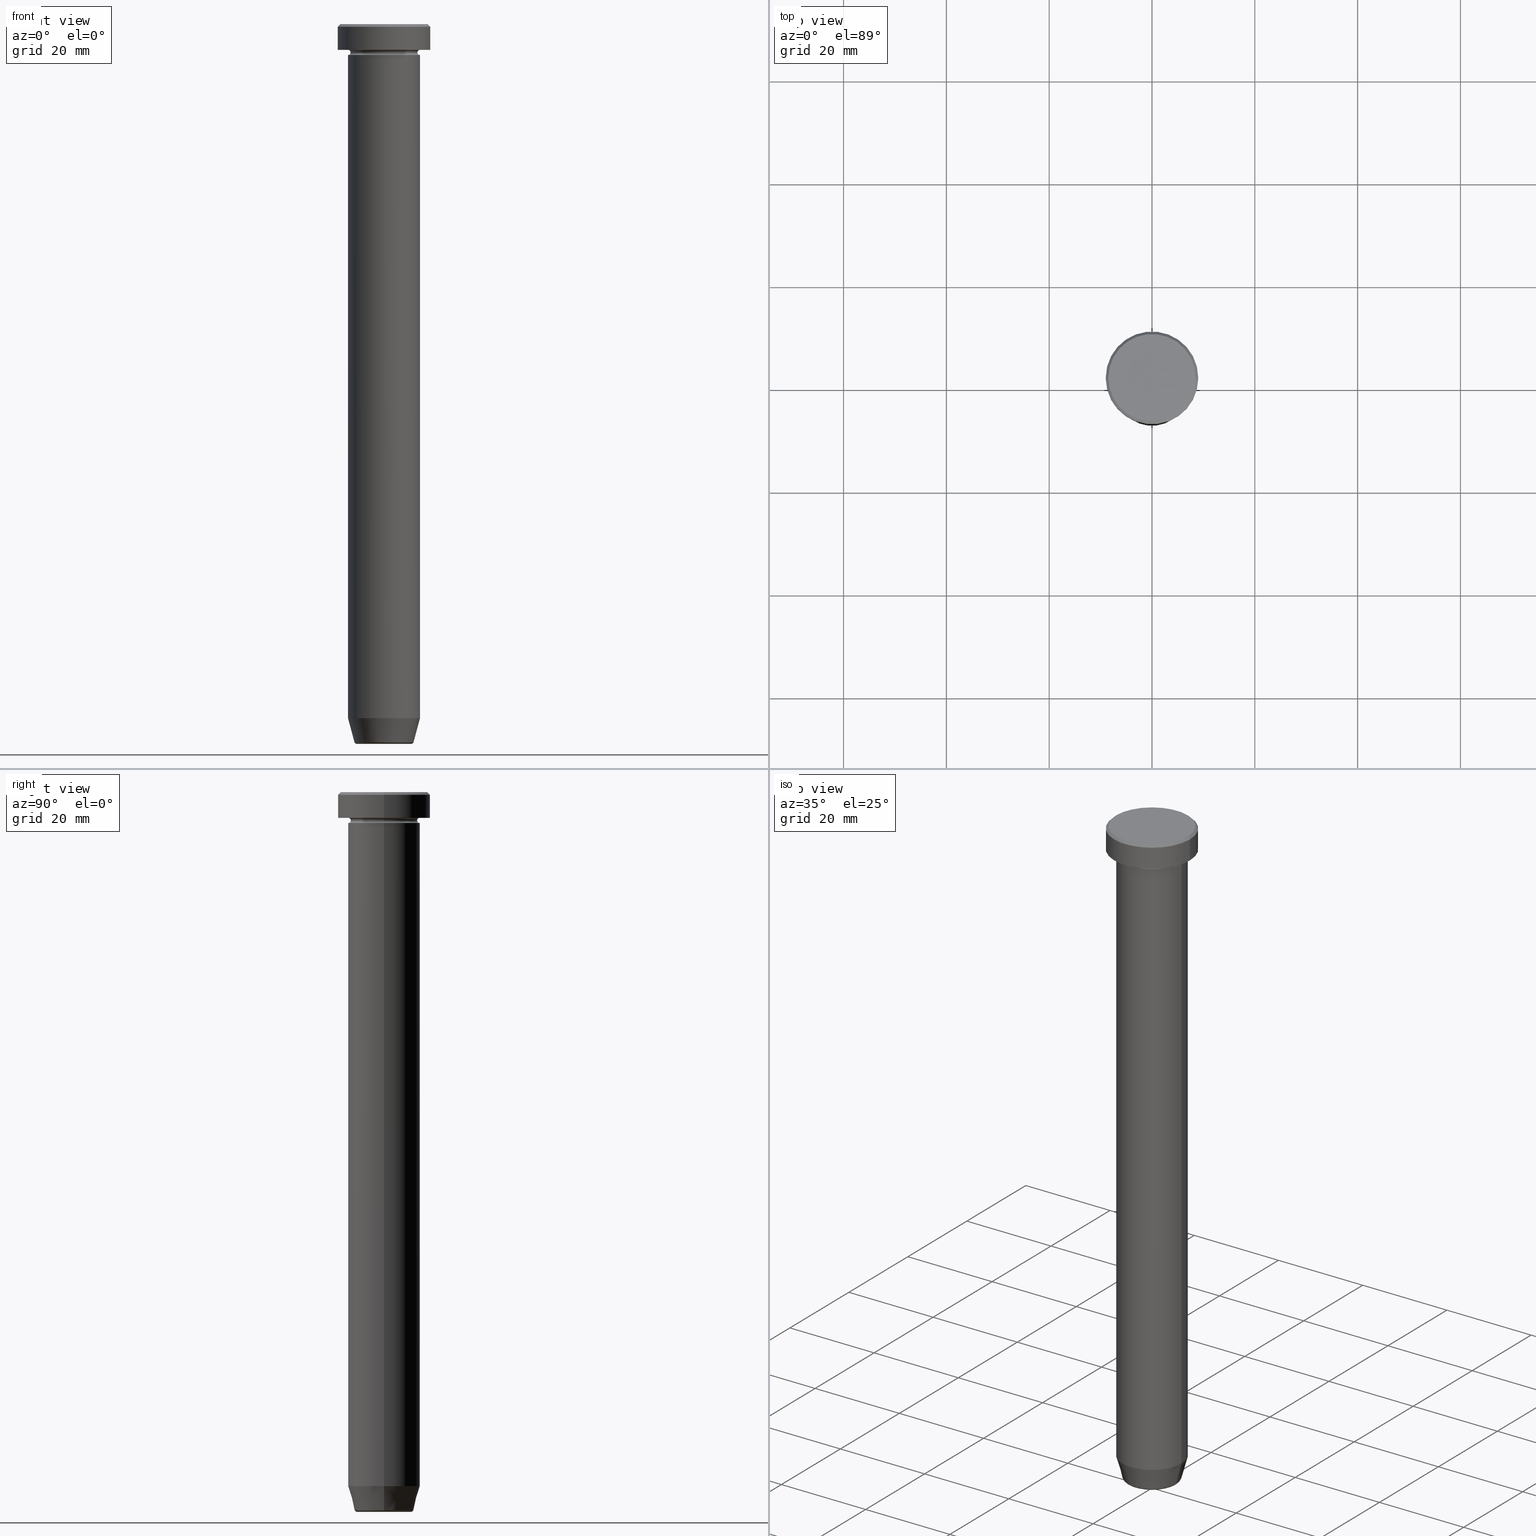
[diagram: canonical four-view strip — front | top / right | iso, engineering-drawing reading convention]
A machine part, canonical four-view strip (front | top / right | iso — engineering-drawing reading convention). The complete STEP part file that produces these views, byte-faithful:
ISO-10303-21;
HEADER;
FILE_DESCRIPTION (( 'STEP AP203' ),
    '1' );
FILE_NAME ('d78c.STEP',
    '2024-01-02T23:12:26',
    ( '' ),
    ( '' ),
    'SwSTEP 2.0',
    'SolidWorks 2019',
    '' );
FILE_SCHEMA (( 'CONFIG_CONTROL_DESIGN' ));
ENDSEC;

DATA;
#1 = ORIENTED_EDGE ( 'NONE', *, *, #469, .T. ) ;
#2 = DIRECTION ( 'NONE',  ( -0.000000000000000000, -0.000000000000000000, 1.000000000000000000 ) ) ;
#3 = APPROVAL_STATUS ( 'not_yet_approved' ) ;
#4 = VERTEX_POINT ( 'NONE', #567 ) ;
#5 = ORIENTED_EDGE ( 'NONE', *, *, #226, .T. ) ;
#6 = CYLINDRICAL_SURFACE ( 'NONE', #482, 9.000000000000000000 ) ;
#7 = AXIS2_PLACEMENT_3D ( 'NONE', #14, #430, #199 ) ;
#8 = AXIS2_PLACEMENT_3D ( 'NONE', #577, #136, #318 ) ;
#9 = EDGE_CURVE ( 'NONE', #383, #455, #119, .T. ) ;
#10 = PERSON_AND_ORGANIZATION ( #48, #489 ) ;
#11 = CARTESIAN_POINT ( 'NONE',  ( 9.000000000000000000, 0.000000000000000000, -5.000000000000000000 ) ) ;
#12 = DIRECTION ( 'NONE',  ( 1.000000000000000000, 0.000000000000000000, 0.000000000000000000 ) ) ;
#13 = ORIENTED_EDGE ( 'NONE', *, *, #586, .F. ) ;
#14 = CARTESIAN_POINT ( 'NONE',  ( 0.000000000000000000, 0.000000000000000000, 0.000000000000000000 ) ) ;
#15 = AXIS2_PLACEMENT_3D ( 'NONE', #404, #309, #76 ) ;
#16 = DIRECTION ( 'NONE',  ( 1.000000000000000000, 0.000000000000000000, 0.000000000000000000 ) ) ;
#17 = LOCAL_TIME ( 0, 12, 26.00000000000000000, #440 ) ;
#18 = ADVANCED_FACE ( 'NONE', ( #350 ), #356, .F. ) ;
#19 = ORIENTED_EDGE ( 'NONE', *, *, #283, .T. ) ;
#20 = DIRECTION ( 'NONE',  ( -0.000000000000000000, -0.000000000000000000, 1.000000000000000000 ) ) ;
#21 = DIRECTION ( 'NONE',  ( -0.000000000000000000, -0.000000000000000000, 1.000000000000000000 ) ) ;
#22 = VECTOR ( 'NONE', #450, 1000.000000000000000 ) ;
#23 = EDGE_CURVE ( 'NONE', #330, #514, #437, .T. ) ;
#24 = ORIENTED_EDGE ( 'NONE', *, *, #586, .T. ) ;
#25 = AXIS2_PLACEMENT_3D ( 'NONE', #422, #377, #460 ) ;
#26 = CIRCLE ( 'NONE', #408, 7.000000000000000888 ) ;
#27 = ORIENTED_EDGE ( 'NONE', *, *, #165, .T. ) ;
#28 = DIRECTION ( 'NONE',  ( -0.000000000000000000, -0.000000000000000000, 1.000000000000000000 ) ) ;
#29 = LOCAL_TIME ( 0, 12, 26.00000000000000000, #57 ) ;
#30 = DIRECTION ( 'NONE',  ( 1.000000000000000000, 0.000000000000000000, 0.000000000000000000 ) ) ;
#31 = DIRECTION ( 'NONE',  ( 0.000000000000000000, 0.000000000000000000, 1.000000000000000000 ) ) ;
#32 = CIRCLE ( 'NONE', #174, 7.000000000000000000 ) ;
#33 = ADVANCED_FACE ( 'NONE', ( #286 ), #236, .T. ) ;
#34 = CARTESIAN_POINT ( 'NONE',  ( 6.500000000000000888, 0.000000000000000000, -5.500000000000000000 ) ) ;
#35 = CARTESIAN_POINT ( 'NONE',  ( 7.000000000000000000, 0.000000000000000000, -27.00000000000000000 ) ) ;
#36 = ORIENTED_EDGE ( 'NONE', *, *, #131, .T. ) ;
#37 = CARTESIAN_POINT ( 'NONE',  ( 8.500000000000003553, 1.040949779275250731E-15, 0.000000000000000000 ) ) ;
#38 = ORIENTED_EDGE ( 'NONE', *, *, #370, .T. ) ;
#39 = APPROVAL_PERSON_ORGANIZATION ( #212, #413, #402 ) ;
#40 = EDGE_CURVE ( 'NONE', #351, #410, #380, .T. ) ;
#41 = PERSON_AND_ORGANIZATION_ROLE ( 'creator' ) ;
#42 = CIRCLE ( 'NONE', #8, 7.000000000000000000 ) ;
#43 = VERTEX_POINT ( 'NONE', #201 ) ;
#44 = PRODUCT_DEFINITION ( 'NEZN�M�', '', #171, #476 ) ;
#45 = ORIENTED_EDGE ( 'NONE', *, *, #195, .F. ) ;
#46 = CARTESIAN_POINT ( 'NONE',  ( 0.000000000000000000, 0.000000000000000000, -5.500000000000000000 ) ) ;
#47 = TOROIDAL_SURFACE ( 'NONE', #151, 7.000000000000000888, 0.5000000000000000000 ) ;
#48 = PERSON ( 'NEUR�EN�', 'NEUR�EN�', 'NEUR�EN�', ('NEUR�EN�'), ('NEUR�EN�'), ('NEUR�EN�') ) ;
#49 = VERTEX_POINT ( 'NONE', #203 ) ;
#50 = APPLICATION_CONTEXT ( 'configuration controlled 3d designs of mechanical parts and assemblies' ) ;
#51 = ADVANCED_FACE ( 'NONE', ( #553 ), #376, .F. ) ;
#52 = CARTESIAN_POINT ( 'NONE',  ( 0.000000000000000000, 0.000000000000000000, -27.00000000000000000 ) ) ;
#53 = DIRECTION ( 'NONE',  ( -1.000000000000000000, 0.000000000000000000, 0.000000000000000000 ) ) ;
#54 = AXIS2_PLACEMENT_3D ( 'NONE', #132, #487, #312 ) ;
#55 = DIRECTION ( 'NONE',  ( -0.000000000000000000, -0.000000000000000000, 1.000000000000000000 ) ) ;
#56 = DIRECTION ( 'NONE',  ( -1.000000000000000000, -1.224646799147351482E-16, 0.000000000000000000 ) ) ;
#57 = COORDINATED_UNIVERSAL_TIME_OFFSET ( 1, 0, .AHEAD. ) ;
#58 = ORIENTED_EDGE ( 'NONE', *, *, #81, .F. ) ;
#59 = FACE_OUTER_BOUND ( 'NONE', #295, .T. ) ;
#60 = CARTESIAN_POINT ( 'NONE',  ( -9.000000000000000000, 1.102182119232617714E-15, 0.000000000000000000 ) ) ;
#61 = DIRECTION ( 'NONE',  ( -0.000000000000000000, -1.000000000000000000, -0.000000000000000000 ) ) ;
#62 = MANIFOLD_SOLID_BREP ( 'Zaoblit4', #574 ) ;
#63 = PLANE ( 'NONE',  #7 ) ;
#64 = ORIENTED_EDGE ( 'NONE', *, *, #326, .F. ) ;
#65 = ORIENTED_EDGE ( 'NONE', *, *, #9, .T. ) ;
#66 = CARTESIAN_POINT ( 'NONE',  ( -7.000000000000000888, 8.572527594031474176E-16, -5.500000000000000000 ) ) ;
#67 = ADVANCED_FACE ( 'NONE', ( #333 ), #470, .T. ) ;
#68 = DIRECTION ( 'NONE',  ( 1.000000000000000000, 0.000000000000000000, 0.000000000000000000 ) ) ;
#69 = AXIS2_PLACEMENT_3D ( 'NONE', #307, #420, #517 ) ;
#70 = CALENDAR_DATE ( 2024, 3, 1 ) ;
#71 = CC_DESIGN_PERSON_AND_ORGANIZATION_ASSIGNMENT ( #187, #536, ( #171 ) ) ;
#72 = DIRECTION ( 'NONE',  ( 0.000000000000000000, -1.000000000000000000, 0.000000000000000000 ) ) ;
#73 = DIRECTION ( 'NONE',  ( -1.224646799147353207E-16, 1.000000000000000000, 0.000000000000000000 ) ) ;
#74 = ADVANCED_FACE ( 'NONE', ( #462 ), #427, .T. ) ;
#75 = VECTOR ( 'NONE', #184, 1000.000000000000114 ) ;
#76 = DIRECTION ( 'NONE',  ( 1.000000000000000000, 0.000000000000000000, 0.000000000000000000 ) ) ;
#77 = VERTEX_POINT ( 'NONE', #559 ) ;
#78 = AXIS2_PLACEMENT_3D ( 'NONE', #570, #173, #347 ) ;
#79 = AXIS2_PLACEMENT_3D ( 'NONE', #122, #515, #53 ) ;
#80 = FACE_OUTER_BOUND ( 'NONE', #218, .T. ) ;
#81 = EDGE_CURVE ( 'NONE', #315, #4, #208, .T. ) ;
#82 = CARTESIAN_POINT ( 'NONE',  ( -7.000000000000000000, 8.572527594031473190E-16, -135.0000000000000000 ) ) ;
#83 = FACE_OUTER_BOUND ( 'NONE', #228, .T. ) ;
#84 = PLANE ( 'NONE',  #137 ) ;
#85 =( NAMED_UNIT ( * ) PLANE_ANGLE_UNIT ( ) SI_UNIT ( $, .RADIAN. ) );
#86 = COORDINATED_UNIVERSAL_TIME_OFFSET ( 1, 0, .AHEAD. ) ;
#87 = CARTESIAN_POINT ( 'NONE',  ( 0.000000000000000000, 0.000000000000000000, -139.5000000000000000 ) ) ;
#88 = FACE_OUTER_BOUND ( 'NONE', #554, .T. ) ;
#89 = CC_DESIGN_PERSON_AND_ORGANIZATION_ASSIGNMENT ( #343, #583, ( #540 ) ) ;
#90 = DIRECTION ( 'NONE',  ( -0.000000000000000000, -0.000000000000000000, 1.000000000000000000 ) ) ;
#91 = EDGE_LOOP ( 'NONE', ( #411, #112, #525, #340 ) ) ;
#92 = SECURITY_CLASSIFICATION_LEVEL ( 'unclassified' ) ;
#93 = CARTESIAN_POINT ( 'NONE',  ( 0.000000000000000000, 0.000000000000000000, -27.00000000000000000 ) ) ;
#94 = ADVANCED_FACE ( 'NONE', ( #524 ), #164, .T. ) ;
#95 = AXIS2_PLACEMENT_3D ( 'NONE', #207, #565, #329 ) ;
#96 = APPROVAL_ROLE ( '' ) ;
#97 = VERTEX_POINT ( 'NONE', #170 ) ;
#98 = ORIENTED_EDGE ( 'NONE', *, *, #131, .F. ) ;
#99 = APPROVAL_DATE_TIME ( #590, #413 ) ;
#100 = ORIENTED_EDGE ( 'NONE', *, *, #370, .F. ) ;
#101 = CC_DESIGN_APPROVAL ( #413, ( #171 ) ) ;
#102 = AXIS2_PLACEMENT_3D ( 'NONE', #93, #594, #334 ) ;
#103 = CARTESIAN_POINT ( 'NONE',  ( 0.000000000000000000, 9.000000000000000000, -5.000000000000000000 ) ) ;
#104 = ORIENTED_EDGE ( 'NONE', *, *, #569, .T. ) ;
#105 = FACE_OUTER_BOUND ( 'NONE', #479, .T. ) ;
#106 = AXIS2_PLACEMENT_3D ( 'NONE', #342, #72, #573 ) ;
#107 = EDGE_CURVE ( 'NONE', #4, #77, #186, .T. ) ;
#108 = CARTESIAN_POINT ( 'NONE',  ( 0.000000000000000000, 0.000000000000000000, 0.000000000000000000 ) ) ;
#109 = ORIENTED_EDGE ( 'NONE', *, *, #165, .F. ) ;
#110 = PLANE ( 'NONE',  #389 ) ;
#111 = DIRECTION ( 'NONE',  ( -0.000000000000000000, -0.000000000000000000, 1.000000000000000000 ) ) ;
#112 = ORIENTED_EDGE ( 'NONE', *, *, #379, .T. ) ;
#113 = DIRECTION ( 'NONE',  ( 0.000000000000000000, 0.000000000000000000, -1.000000000000000000 ) ) ;
#114 = DIRECTION ( 'NONE',  ( -0.000000000000000000, -0.000000000000000000, 1.000000000000000000 ) ) ;
#115 = CARTESIAN_POINT ( 'NONE',  ( 0.000000000000000000, 0.000000000000000000, 0.000000000000000000 ) ) ;
#116 = PLANE ( 'NONE',  #145 ) ;
#117 = AXIS2_PLACEMENT_3D ( 'NONE', #545, #183, #30 ) ;
#118 = DIRECTION ( 'NONE',  ( 1.224646799147353207E-16, 1.000000000000000000, 0.000000000000000000 ) ) ;
#119 = CIRCLE ( 'NONE', #597, 0.5000000000000004441 ) ;
#120 = DIRECTION ( 'NONE',  ( 0.000000000000000000, 0.000000000000000000, -1.000000000000000000 ) ) ;
#121 = EDGE_CURVE ( 'NONE', #351, #43, #579, .T. ) ;
#122 = CARTESIAN_POINT ( 'NONE',  ( 0.000000000000000000, 0.000000000000000000, -139.6294095225512706 ) ) ;
#123 = DIRECTION ( 'NONE',  ( -1.000000000000000000, 0.000000000000000000, -0.000000000000000000 ) ) ;
#124 = LINE ( 'NONE', #216, #291 ) ;
#125 = CARTESIAN_POINT ( 'NONE',  ( 0.000000000000000000, 0.000000000000000000, -5.000000000000000000 ) ) ;
#126 = CARTESIAN_POINT ( 'NONE',  ( -7.000000000000000888, 0.000000000000000000, -5.500000000000000000 ) ) ;
#127 = AXIS2_PLACEMENT_3D ( 'NONE', #434, #21, #568 ) ;
#128 = VECTOR ( 'NONE', #28, 1000.000000000000000 ) ;
#129 = VERTEX_POINT ( 'NONE', #507 ) ;
#130 = DIRECTION ( 'NONE',  ( 0.000000000000000000, 0.000000000000000000, -1.000000000000000000 ) ) ;
#131 = EDGE_CURVE ( 'NONE', #383, #49, #522, .T. ) ;
#132 = CARTESIAN_POINT ( 'NONE',  ( 0.000000000000000000, 0.000000000000000000, -0.4999999999999952260 ) ) ;
#133 = AXIS2_PLACEMENT_3D ( 'NONE', #46, #2, #275 ) ;
#134 = DIRECTION ( 'NONE',  ( 1.000000000000000000, 0.000000000000000000, 0.000000000000000000 ) ) ;
#135 = CARTESIAN_POINT ( 'NONE',  ( -7.000000000000000000, 8.572527594031473190E-16, 0.000000000000000000 ) ) ;
#136 = DIRECTION ( 'NONE',  ( -0.000000000000000000, -0.000000000000000000, 1.000000000000000000 ) ) ;
#137 = AXIS2_PLACEMENT_3D ( 'NONE', #185, #534, #538 ) ;
#138 = AXIS2_PLACEMENT_3D ( 'NONE', #466, #418, #162 ) ;
#139 = EDGE_CURVE ( 'NONE', #77, #423, #512, .T. ) ;
#140 = DIRECTION ( 'NONE',  ( -0.000000000000000000, -0.000000000000000000, 1.000000000000000000 ) ) ;
#141 = DIRECTION ( 'NONE',  ( 1.000000000000000000, 0.000000000000000000, 0.000000000000000000 ) ) ;
#142 = DIRECTION ( 'NONE',  ( -0.000000000000000000, -0.000000000000000000, 1.000000000000000000 ) ) ;
#143 = PERSON_AND_ORGANIZATION ( #48, #489 ) ;
#144 = CARTESIAN_POINT ( 'NONE',  ( 0.000000000000000000, 0.000000000000000000, -140.0000000000000000 ) ) ;
#145 = AXIS2_PLACEMENT_3D ( 'NONE', #103, #211, #485 ) ;
#146 = DIRECTION ( 'NONE',  ( 1.000000000000000000, 0.000000000000000000, 0.000000000000000000 ) ) ;
#147 = CONICAL_SURFACE ( 'NONE', #292, 5.660254037844381969, 0.2617993877991500740 ) ;
#148 = ADVANCED_FACE ( 'NONE', ( #105 ), #47, .F. ) ;
#149 = CARTESIAN_POINT ( 'NONE',  ( -5.660254037844381969, 6.931811989807004350E-16, -140.0000000000000000 ) ) ;
#150 = CLOSED_SHELL ( 'NONE', ( #244, #148, #339, #74, #94, #551, #535, #202, #555, #480, #576, #18, #33 ) ) ;
#151 = AXIS2_PLACEMENT_3D ( 'NONE', #598, #457, #368 ) ;
#152 = AXIS2_PLACEMENT_3D ( 'NONE', #294, #477, #242 ) ;
#153 = EDGE_LOOP ( 'NONE', ( #328, #549 ) ) ;
#154 = EDGE_LOOP ( 'NONE', ( #213, #505 ) ) ;
#155 = EDGE_LOOP ( 'NONE', ( #64, #159, #387, #546 ) ) ;
#156 = DIRECTION ( 'NONE',  ( -0.000000000000000000, -0.000000000000000000, 1.000000000000000000 ) ) ;
#157 = ORIENTED_EDGE ( 'NONE', *, *, #441, .T. ) ;
#158 = ADVANCED_FACE ( 'NONE', ( #238 ), #253, .T. ) ;
#159 = ORIENTED_EDGE ( 'NONE', *, *, #219, .T. ) ;
#160 = ORIENTED_EDGE ( 'NONE', *, *, #599, .T. ) ;
#161 = ORIENTED_EDGE ( 'NONE', *, *, #254, .T. ) ;
#162 = DIRECTION ( 'NONE',  ( -1.000000000000000000, 0.000000000000000000, 0.000000000000000000 ) ) ;
#163 = DIRECTION ( 'NONE',  ( -0.000000000000000000, -0.000000000000000000, 1.000000000000000000 ) ) ;
#164 = CYLINDRICAL_SURFACE ( 'NONE', #95, 9.000000000000000000 ) ;
#165 = EDGE_CURVE ( 'NONE', #230, #168, #400, .T. ) ;
#166 = EDGE_LOOP ( 'NONE', ( #456, #298, #1, #508 ) ) ;
#167 = DATE_TIME_ROLE ( 'creation_date' ) ;
#168 = VERTEX_POINT ( 'NONE', #11 ) ;
#169 = CARTESIAN_POINT ( 'NONE',  ( 0.000000000000000000, 7.000000000000000000, -26.99999999999999645 ) ) ;
#170 = CARTESIAN_POINT ( 'NONE',  ( -8.500000000000003553, 0.000000000000000000, 0.000000000000000000 ) ) ;
#171 = PRODUCT_DEFINITION_FORMATION_WITH_SPECIFIED_SOURCE ( 'LIBOVOLN�', '', #540, .NOT_KNOWN. ) ;
#172 = EDGE_CURVE ( 'NONE', #168, #230, #310, .T. ) ;
#173 = DIRECTION ( 'NONE',  ( 0.000000000000000000, 0.000000000000000000, -1.000000000000000000 ) ) ;
#174 = AXIS2_PLACEMENT_3D ( 'NONE', #352, #580, #382 ) ;
#175 = AXIS2_PLACEMENT_3D ( 'NONE', #566, #209, #68 ) ;
#176 = ORIENTED_EDGE ( 'NONE', *, *, #81, .T. ) ;
#177 = CIRCLE ( 'NONE', #503, 7.000000000000000888 ) ;
#178 = EDGE_LOOP ( 'NONE', ( #233, #27, #488, #278 ) ) ;
#179 = APPROVAL_ROLE ( '' ) ;
#180 = EDGE_LOOP ( 'NONE', ( #196, #248, #510, #100 ) ) ;
#181 = EDGE_CURVE ( 'NONE', #321, #77, #417, .T. ) ;
#182 = DIRECTION ( 'NONE',  ( 1.000000000000000000, 0.000000000000000000, 0.000000000000000000 ) ) ;
#183 = DIRECTION ( 'NONE',  ( -0.000000000000000000, -0.000000000000000000, 1.000000000000000000 ) ) ;
#184 = DIRECTION ( 'NONE',  ( -0.7071067811865474617, 0.000000000000000000, -0.7071067811865474617 ) ) ;
#185 = CARTESIAN_POINT ( 'NONE',  ( 0.000000000000000000, 1.102182119232618069E-14, -140.0000000000000000 ) ) ;
#186 = CIRCLE ( 'NONE', #106, 0.5000000000000004441 ) ;
#187 = PERSON_AND_ORGANIZATION ( #48, #489 ) ;
#188 = DIRECTION ( 'NONE',  ( -0.000000000000000000, -0.000000000000000000, 1.000000000000000000 ) ) ;
#189 = VERTEX_POINT ( 'NONE', #341 ) ;
#190 = AXIS2_PLACEMENT_3D ( 'NONE', #393, #20, #578 ) ;
#191 = AXIS2_PLACEMENT_3D ( 'NONE', #126, #61, #130 ) ;
#192 = CARTESIAN_POINT ( 'NONE',  ( -5.276590543854905668, 6.757689212787771832E-16, -140.0000000000000000 ) ) ;
#193 = DIRECTION ( 'NONE',  ( 0.2588190451025213501, 0.000000000000000000, 0.9659258262890680902 ) ) ;
#194 = DATE_AND_TIME ( #375, #558 ) ;
#195 = EDGE_CURVE ( 'NONE', #288, #189, #177, .T. ) ;
#196 = ORIENTED_EDGE ( 'NONE', *, *, #322, .F. ) ;
#197 = EDGE_LOOP ( 'NONE', ( #241, #176 ) ) ;
#198 = DIRECTION ( 'NONE',  ( -0.000000000000000000, -0.000000000000000000, 1.000000000000000000 ) ) ;
#199 = DIRECTION ( 'NONE',  ( 1.000000000000000000, 0.000000000000000000, 0.000000000000000000 ) ) ;
#200 = DIRECTION ( 'NONE',  ( 1.000000000000000000, 0.000000000000000000, 0.000000000000000000 ) ) ;
#201 = CARTESIAN_POINT ( 'NONE',  ( -7.000000000000000000, 8.572527594031473190E-16, -6.000000000000000000 ) ) ;
#202 = ADVANCED_FACE ( 'NONE', ( #560 ), #6, .T. ) ;
#203 = CARTESIAN_POINT ( 'NONE',  ( -6.500000000000000888, 8.266365894244635319E-16, -5.500000000000000000 ) ) ;
#204 = EDGE_LOOP ( 'NONE', ( #5, #407 ) ) ;
#205 = CIRCLE ( 'NONE', #572, 7.000000000000000000 ) ;
#206 = CARTESIAN_POINT ( 'NONE',  ( 0.000000000000000000, 0.000000000000000000, -140.0000000000000000 ) ) ;
#207 = CARTESIAN_POINT ( 'NONE',  ( 0.000000000000000000, 0.000000000000000000, 0.000000000000000000 ) ) ;
#208 = CIRCLE ( 'NONE', #433, 5.276590543854905668 ) ;
#209 = DIRECTION ( 'NONE',  ( -0.000000000000000000, -0.000000000000000000, 1.000000000000000000 ) ) ;
#210 = DIRECTION ( 'NONE',  ( 0.000000000000000000, -1.000000000000000000, 0.000000000000000000 ) ) ;
#211 = DIRECTION ( 'NONE',  ( 0.000000000000000000, 0.000000000000000000, -1.000000000000000000 ) ) ;
#212 = PERSON_AND_ORGANIZATION ( #48, #489 ) ;
#213 = ORIENTED_EDGE ( 'NONE', *, *, #516, .F. ) ;
#214 = APPROVAL ( #453, 'NEUR�EN�' ) ;
#215 = ORIENTED_EDGE ( 'NONE', *, *, #219, .F. ) ;
#216 = CARTESIAN_POINT ( 'NONE',  ( -7.000000000000000000, 8.572527594031473190E-16, 0.000000000000000000 ) ) ;
#217 = MECHANICAL_CONTEXT ( 'NONE', #50, 'mechanical' ) ;
#218 = EDGE_LOOP ( 'NONE', ( #157, #327, #562, #369 ) ) ;
#219 = EDGE_CURVE ( 'NONE', #49, #43, #225, .T. ) ;
#220 = DIRECTION ( 'NONE',  ( 1.000000000000000000, 0.000000000000000000, 0.000000000000000000 ) ) ;
#221 = TOROIDAL_SURFACE ( 'NONE', #289, 7.000000000000000888, 0.5000000000000000000 ) ;
#222 = CARTESIAN_POINT ( 'NONE',  ( 0.000000000000000000, 0.000000000000000000, -5.000000000000000000 ) ) ;
#223 = LINE ( 'NONE', #587, #75 ) ;
#224 = CARTESIAN_POINT ( 'NONE',  ( 0.000000000000000000, 0.000000000000000000, -140.0000000000000000 ) ) ;
#225 = CIRCLE ( 'NONE', #468, 0.5000000000000004441 ) ;
#226 = EDGE_CURVE ( 'NONE', #189, #288, #26, .T. ) ;
#227 = CARTESIAN_POINT ( 'NONE',  ( 9.000000000000000000, 0.000000000000000000, 0.000000000000000000 ) ) ;
#228 = EDGE_LOOP ( 'NONE', ( #19, #575, #359, #13 ) ) ;
#229 = CARTESIAN_POINT ( 'NONE',  ( 8.500000000000003553, 1.071565949253934321E-15, 0.000000000000000000 ) ) ;
#230 = VERTEX_POINT ( 'NONE', #473 ) ;
#231 = AXIS2_PLACEMENT_3D ( 'NONE', #491, #398, #358 ) ;
#232 = PERSON_AND_ORGANIZATION ( #48, #489 ) ;
#233 = ORIENTED_EDGE ( 'NONE', *, *, #240, .F. ) ;
#234 = AXIS2_PLACEMENT_3D ( 'NONE', #108, #31, #272 ) ;
#235 = ORIENTED_EDGE ( 'NONE', *, *, #172, .F. ) ;
#236 = CONICAL_SURFACE ( 'NONE', #138, 8.500000000000003553, 0.7853981633974482790 ) ;
#237 = APPROVAL_STATUS ( 'not_yet_approved' ) ;
#238 = FACE_OUTER_BOUND ( 'NONE', #472, .T. ) ;
#239 = FACE_OUTER_BOUND ( 'NONE', #390, .T. ) ;
#240 = EDGE_CURVE ( 'NONE', #230, #514, #416, .T. ) ;
#241 = ORIENTED_EDGE ( 'NONE', *, *, #529, .T. ) ;
#242 = DIRECTION ( 'NONE',  ( -1.000000000000000000, 0.000000000000000000, -0.000000000000000000 ) ) ;
#243 = LOCAL_TIME ( 0, 12, 26.00000000000000000, #86 ) ;
#244 = ADVANCED_FACE ( 'NONE', ( #290 ), #429, .T. ) ;
#245 = DIRECTION ( 'NONE',  ( -0.000000000000000000, -0.000000000000000000, 1.000000000000000000 ) ) ;
#246 = DIRECTION ( 'NONE',  ( 1.000000000000000000, 0.000000000000000000, 0.000000000000000000 ) ) ;
#247 = CARTESIAN_POINT ( 'NONE',  ( -9.000000000000000000, 1.102182119232617714E-15, -0.4999999999999952260 ) ) ;
#248 = ORIENTED_EDGE ( 'NONE', *, *, #181, .T. ) ;
#249 = EDGE_LOOP ( 'NONE', ( #412, #459, #550, #302 ) ) ;
#250 = CIRCLE ( 'NONE', #305, 0.5000000000000004441 ) ;
#251 = MANIFOLD_SOLID_BREP ( 'Zkosen�1', #150 ) ;
#252 = AXIS2_PLACEMENT_3D ( 'NONE', #52, #245, #12 ) ;
#253 = TOROIDAL_SURFACE ( 'NONE', #449, 5.276590543854905668, 0.5000000000000000000 ) ;
#254 = EDGE_CURVE ( 'NONE', #299, #97, #582, .T. ) ;
#255 = DIRECTION ( 'NONE',  ( -0.000000000000000000, -0.000000000000000000, 1.000000000000000000 ) ) ;
#256 = ORIENTED_EDGE ( 'NONE', *, *, #441, .F. ) ;
#257 = CC_DESIGN_PERSON_AND_ORGANIZATION_ASSIGNMENT ( #365, #41, ( #171 ) ) ;
#258 = CARTESIAN_POINT ( 'NONE',  ( 0.000000000000000000, 0.000000000000000000, 0.000000000000000000 ) ) ;
#259 = EDGE_LOOP ( 'NONE', ( #58, #367, #256, #467 ) ) ;
#260 = PERSON_AND_ORGANIZATION ( #48, #489 ) ;
#261 = CIRCLE ( 'NONE', #69, 0.4999999999999995559 ) ;
#262 = ORIENTED_EDGE ( 'NONE', *, *, #529, .F. ) ;
#263 = DIRECTION ( 'NONE',  ( -1.000000000000000000, 0.000000000000000000, 0.000000000000000000 ) ) ;
#264 = CARTESIAN_POINT ( 'NONE',  ( 7.000000000000000888, 8.572527594031474176E-16, -4.999999999999999112 ) ) ;
#265 = APPROVAL_DATE_TIME ( #581, #589 ) ;
#266 = EDGE_CURVE ( 'NONE', #514, #330, #533, .T. ) ;
#267 = LINE ( 'NONE', #149, #317 ) ;
#268 = AXIS2_PLACEMENT_3D ( 'NONE', #445, #392, #134 ) ;
#269 = DATE_AND_TIME ( #443, #287 ) ;
#270 = CARTESIAN_POINT ( 'NONE',  ( 0.000000000000000000, 0.000000000000000000, -5.500000000000000000 ) ) ;
#271 = ORIENTED_EDGE ( 'NONE', *, *, #226, .F. ) ;
#272 = DIRECTION ( 'NONE',  ( 1.000000000000000000, 0.000000000000000000, 0.000000000000000000 ) ) ;
#273 = DIRECTION ( 'NONE',  ( -0.000000000000000000, -0.000000000000000000, 1.000000000000000000 ) ) ;
#274 = DIRECTION ( 'NONE',  ( -0.000000000000000000, -0.000000000000000000, 1.000000000000000000 ) ) ;
#275 = DIRECTION ( 'NONE',  ( 1.000000000000000000, 0.000000000000000000, 0.000000000000000000 ) ) ;
#276 =( LENGTH_UNIT ( ) NAMED_UNIT ( * ) SI_UNIT ( .MILLI., .METRE. ) );
#277 = ADVANCED_FACE ( 'NONE', ( #83 ), #484, .T. ) ;
#278 = ORIENTED_EDGE ( 'NONE', *, *, #23, .T. ) ;
#279 = DIRECTION ( 'NONE',  ( -0.000000000000000000, -0.000000000000000000, 1.000000000000000000 ) ) ;
#280 = DIRECTION ( 'NONE',  ( 1.000000000000000000, 0.000000000000000000, 0.000000000000000000 ) ) ;
#281 = ORIENTED_EDGE ( 'NONE', *, *, #599, .F. ) ;
#282 = DIRECTION ( 'NONE',  ( -1.000000000000000000, 0.000000000000000000, 0.000000000000000000 ) ) ;
#283 = EDGE_CURVE ( 'NONE', #423, #463, #42, .T. ) ;
#284 = APPLICATION_PROTOCOL_DEFINITION ( 'international standard', 'config_control_design', 1994, #50 ) ;
#285 =( NAMED_UNIT ( * ) SI_UNIT ( $, .STERADIAN. ) SOLID_ANGLE_UNIT ( ) );
#286 = FACE_OUTER_BOUND ( 'NONE', #166, .T. ) ;
#287 = LOCAL_TIME ( 0, 12, 26.00000000000000000, #311 ) ;
#288 = VERTEX_POINT ( 'NONE', #264 ) ;
#289 = AXIS2_PLACEMENT_3D ( 'NONE', #270, #274, #454 ) ;
#290 = FACE_OUTER_BOUND ( 'NONE', #91, .T. ) ;
#291 = VECTOR ( 'NONE', #142, 1000.000000000000000 ) ;
#292 = AXIS2_PLACEMENT_3D ( 'NONE', #224, #442, #141 ) ;
#293 = CC_DESIGN_PERSON_AND_ORGANIZATION_ASSIGNMENT ( #10, #331, ( #44 ) ) ;
#294 = CARTESIAN_POINT ( 'NONE',  ( 0.000000000000000000, -2.602085213965210642E-15, -27.00000000000000000 ) ) ;
#295 = EDGE_LOOP ( 'NONE', ( #235, #109 ) ) ;
#296 = DIRECTION ( 'NONE',  ( -0.000000000000000000, -0.000000000000000000, 1.000000000000000000 ) ) ;
#297 = DIRECTION ( 'NONE',  ( 1.000000000000000000, 0.000000000000000000, 0.000000000000000000 ) ) ;
#298 = ORIENTED_EDGE ( 'NONE', *, *, #526, .F. ) ;
#299 = VERTEX_POINT ( 'NONE', #229 ) ;
#300 = CARTESIAN_POINT ( 'NONE',  ( 0.000000000000000000, 0.000000000000000000, 0.000000000000000000 ) ) ;
#301 = CARTESIAN_POINT ( 'NONE',  ( 7.000000000000000888, 0.000000000000000000, -5.500000000000000000 ) ) ;
#302 = ORIENTED_EDGE ( 'NONE', *, *, #432, .F. ) ;
#303 = FACE_BOUND ( 'NONE', #204, .T. ) ;
#304 = CC_DESIGN_APPROVAL ( #214, ( #388 ) ) ;
#305 = AXIS2_PLACEMENT_3D ( 'NONE', #478, #73, #56 ) ;
#306 = CARTESIAN_POINT ( 'NONE',  ( 7.000000000000000000, 0.000000000000000000, 0.000000000000000000 ) ) ;
#307 = CARTESIAN_POINT ( 'NONE',  ( -5.276590543854905668, 6.461959719943102461E-16, -139.5000000000000000 ) ) ;
#308 = ADVANCED_FACE ( 'NONE', ( #80 ), #147, .T. ) ;
#309 = DIRECTION ( 'NONE',  ( -0.000000000000000000, -0.000000000000000000, 1.000000000000000000 ) ) ;
#310 = CIRCLE ( 'NONE', #381, 9.000000000000000000 ) ;
#311 = COORDINATED_UNIVERSAL_TIME_OFFSET ( 1, 0, .AHEAD. ) ;
#312 = DIRECTION ( 'NONE',  ( 1.000000000000000000, 0.000000000000000000, 0.000000000000000000 ) ) ;
#313 = FACE_OUTER_BOUND ( 'NONE', #155, .T. ) ;
#314 = CARTESIAN_POINT ( 'NONE',  ( 5.660254037844381969, 0.000000000000000000, -140.0000000000000000 ) ) ;
#315 = VERTEX_POINT ( 'NONE', #192 ) ;
#316 = CIRCLE ( 'NONE', #231, 7.000000000000000000 ) ;
#317 = VECTOR ( 'NONE', #588, 1000.000000000000000 ) ;
#318 = DIRECTION ( 'NONE',  ( 1.000000000000000000, 0.000000000000000000, 0.000000000000000000 ) ) ;
#319 = ORIENTED_EDGE ( 'NONE', *, *, #403, .F. ) ;
#320 = ORIENTED_EDGE ( 'NONE', *, *, #40, .T. ) ;
#321 = VERTEX_POINT ( 'NONE', #362 ) ;
#322 = EDGE_CURVE ( 'NONE', #321, #463, #267, .T. ) ;
#323 = ORIENTED_EDGE ( 'NONE', *, *, #326, .T. ) ;
#324 = CIRCLE ( 'NONE', #190, 5.759553456999436882 ) ;
#325 = DIRECTION ( 'NONE',  ( 1.000000000000000000, 0.000000000000000000, 0.000000000000000000 ) ) ;
#326 = EDGE_CURVE ( 'NONE', #49, #383, #364, .T. ) ;
#327 = ORIENTED_EDGE ( 'NONE', *, *, #322, .T. ) ;
#328 = ORIENTED_EDGE ( 'NONE', *, *, #424, .T. ) ;
#329 = DIRECTION ( 'NONE',  ( 1.000000000000000000, 0.000000000000000000, 0.000000000000000000 ) ) ;
#330 = VERTEX_POINT ( 'NONE', #585 ) ;
#331 = PERSON_AND_ORGANIZATION_ROLE ( 'creator' ) ;
#332 = PRODUCT_DEFINITION_SHAPE ( 'NONE', 'NONE',  #44 ) ;
#333 = FACE_OUTER_BOUND ( 'NONE', #259, .T. ) ;
#334 = DIRECTION ( 'NONE',  ( 1.000000000000000000, 0.000000000000000000, 0.000000000000000000 ) ) ;
#335 = EDGE_LOOP ( 'NONE', ( #345, #36, #160, #45 ) ) ;
#336 = CARTESIAN_POINT ( 'NONE',  ( 0.000000000000000000, 0.000000000000000000, -5.000000000000000000 ) ) ;
#337 = VECTOR ( 'NONE', #193, 1000.000000000000000 ) ;
#338 = ORIENTED_EDGE ( 'NONE', *, *, #432, .T. ) ;
#339 = ADVANCED_FACE ( 'NONE', ( #313 ), #221, .F. ) ;
#340 = ORIENTED_EDGE ( 'NONE', *, *, #469, .F. ) ;
#341 = CARTESIAN_POINT ( 'NONE',  ( -7.000000000000000888, 0.000000000000000000, -4.999999999999999112 ) ) ;
#342 = CARTESIAN_POINT ( 'NONE',  ( 5.276590543854905668, 0.000000000000000000, -139.5000000000000000 ) ) ;
#343 = PERSON_AND_ORGANIZATION ( #48, #489 ) ;
#344 = DIRECTION ( 'NONE',  ( 0.000000000000000000, 0.000000000000000000, -1.000000000000000000 ) ) ;
#345 = ORIENTED_EDGE ( 'NONE', *, *, #511, .F. ) ;
#346 = DIRECTION ( 'NONE',  ( -0.000000000000000000, -0.000000000000000000, 1.000000000000000000 ) ) ;
#347 = DIRECTION ( 'NONE',  ( -1.000000000000000000, 0.000000000000000000, 0.000000000000000000 ) ) ;
#348 = DIRECTION ( 'NONE',  ( -0.000000000000000000, -0.000000000000000000, 1.000000000000000000 ) ) ;
#349 = AXIS2_PLACEMENT_3D ( 'NONE', #447, #90, #220 ) ;
#350 = FACE_OUTER_BOUND ( 'NONE', #335, .T. ) ;
#351 = VERTEX_POINT ( 'NONE', #504 ) ;
#352 = CARTESIAN_POINT ( 'NONE',  ( 0.000000000000000000, 0.000000000000000000, -6.000000000000000000 ) ) ;
#353 = LINE ( 'NONE', #306, #128 ) ;
#354 = CYLINDRICAL_SURFACE ( 'NONE', #15, 7.000000000000000000 ) ;
#355 = ADVANCED_BREP_SHAPE_REPRESENTATION ( 'd78c', ( #251, #62, #234 ), #557 ) ;
#356 = TOROIDAL_SURFACE ( 'NONE', #78, 7.000000000000000888, 0.5000000000000000000 ) ;
#357 = ADVANCED_FACE ( 'NONE', ( #493 ), #84, .F. ) ;
#358 = DIRECTION ( 'NONE',  ( 1.000000000000000000, 0.000000000000000000, 0.000000000000000000 ) ) ;
#359 = ORIENTED_EDGE ( 'NONE', *, *, #424, .F. ) ;
#360 = CARTESIAN_POINT ( 'NONE',  ( 7.000000000000000000, 0.000000000000000000, -6.000000000000000000 ) ) ;
#361 = APPROVAL_DATE_TIME ( #269, #214 ) ;
#362 = CARTESIAN_POINT ( 'NONE',  ( -5.759553456999436882, 7.812973149831951773E-16, -139.6294095225512706 ) ) ;
#363 = CONICAL_SURFACE ( 'NONE', #532, 5.660254037844381969, 0.2617993877991500740 ) ;
#364 = CIRCLE ( 'NONE', #117, 6.500000000000000888 ) ;
#365 = PERSON_AND_ORGANIZATION ( #48, #489 ) ;
#366 = LINE ( 'NONE', #37, #458 ) ;
#367 = ORIENTED_EDGE ( 'NONE', *, *, #494, .T. ) ;
#368 = DIRECTION ( 'NONE',  ( -1.000000000000000000, 0.000000000000000000, 0.000000000000000000 ) ) ;
#369 = ORIENTED_EDGE ( 'NONE', *, *, #139, .F. ) ;
#370 = EDGE_CURVE ( 'NONE', #463, #423, #544, .T. ) ;
#371 = TOROIDAL_SURFACE ( 'NONE', #127, 7.000000000000000888, 0.5000000000000000000 ) ;
#372 = AXIS2_PLACEMENT_3D ( 'NONE', #425, #255, #556 ) ;
#373 = ORIENTED_EDGE ( 'NONE', *, *, #107, .T. ) ;
#374 = FACE_OUTER_BOUND ( 'NONE', #154, .T. ) ;
#375 = CALENDAR_DATE ( 2024, 3, 1 ) ;
#376 = PLANE ( 'NONE',  #152 ) ;
#377 = DIRECTION ( 'NONE',  ( -0.000000000000000000, -0.000000000000000000, 1.000000000000000000 ) ) ;
#378 = CARTESIAN_POINT ( 'NONE',  ( 7.000000000000000000, 0.000000000000000000, -135.0000000000000000 ) ) ;
#379 = EDGE_CURVE ( 'NONE', #299, #330, #366, .T. ) ;
#380 = CIRCLE ( 'NONE', #252, 7.000000000000000000 ) ;
#381 = AXIS2_PLACEMENT_3D ( 'NONE', #125, #163, #246 ) ;
#382 = DIRECTION ( 'NONE',  ( 1.000000000000000000, 0.000000000000000000, 0.000000000000000000 ) ) ;
#383 = VERTEX_POINT ( 'NONE', #34 ) ;
#384 = CARTESIAN_POINT ( 'NONE',  ( 0.000000000000000000, 0.000000000000000000, -0.4999999999999952260 ) ) ;
#385 = LINE ( 'NONE', #571, #444 ) ;
#386 = EDGE_CURVE ( 'NONE', #43, #455, #316, .T. ) ;
#387 = ORIENTED_EDGE ( 'NONE', *, *, #386, .T. ) ;
#388 = SECURITY_CLASSIFICATION ( '', '', #92 ) ;
#389 = AXIS2_PLACEMENT_3D ( 'NONE', #169, #113, #123 ) ;
#390 = EDGE_LOOP ( 'NONE', ( #394, #38, #24, #319 ) ) ;
#391 = VECTOR ( 'NONE', #537, 1000.000000000000000 ) ;
#392 = DIRECTION ( 'NONE',  ( -0.000000000000000000, -0.000000000000000000, 1.000000000000000000 ) ) ;
#393 = CARTESIAN_POINT ( 'NONE',  ( 0.000000000000000000, 0.000000000000000000, -139.6294095225512706 ) ) ;
#394 = ORIENTED_EDGE ( 'NONE', *, *, #452, .F. ) ;
#395 = CALENDAR_DATE ( 2024, 3, 1 ) ;
#396 = CIRCLE ( 'NONE', #175, 7.000000000000000000 ) ;
#397 = EDGE_CURVE ( 'NONE', #168, #330, #497, .T. ) ;
#398 = DIRECTION ( 'NONE',  ( -0.000000000000000000, -0.000000000000000000, 1.000000000000000000 ) ) ;
#399 = DIRECTION ( 'NONE',  ( 1.000000000000000000, 0.000000000000000000, 0.000000000000000000 ) ) ;
#400 = CIRCLE ( 'NONE', #438, 9.000000000000000000 ) ;
#401 = VERTEX_POINT ( 'NONE', #35 ) ;
#402 = APPROVAL_ROLE ( '' ) ;
#403 = EDGE_CURVE ( 'NONE', #129, #401, #436, .T. ) ;
#404 = CARTESIAN_POINT ( 'NONE',  ( 0.000000000000000000, 0.000000000000000000, 0.000000000000000000 ) ) ;
#405 = DIRECTION ( 'NONE',  ( 0.7071067811865474617, 8.659560562354932858E-17, -0.7071067811865474617 ) ) ;
#406 = ORIENTED_EDGE ( 'NONE', *, *, #511, .T. ) ;
#407 = ORIENTED_EDGE ( 'NONE', *, *, #195, .T. ) ;
#408 = AXIS2_PLACEMENT_3D ( 'NONE', #523, #296, #282 ) ;
#409 = CALENDAR_DATE ( 2024, 3, 1 ) ;
#410 = VERTEX_POINT ( 'NONE', #431 ) ;
#411 = ORIENTED_EDGE ( 'NONE', *, *, #254, .F. ) ;
#412 = ORIENTED_EDGE ( 'NONE', *, *, #516, .T. ) ;
#413 = APPROVAL ( #237, 'NEUR�EN�' ) ;
#414 = DIRECTION ( 'NONE',  ( 0.000000000000000000, 0.000000000000000000, -1.000000000000000000 ) ) ;
#415 = ORIENTED_EDGE ( 'NONE', *, *, #266, .T. ) ;
#416 = LINE ( 'NONE', #60, #563 ) ;
#417 = CIRCLE ( 'NONE', #79, 5.759553456999436882 ) ;
#418 = DIRECTION ( 'NONE',  ( 0.000000000000000000, 0.000000000000000000, -1.000000000000000000 ) ) ;
#419 = DIRECTION ( 'NONE',  ( -1.000000000000000000, 1.224646799147351482E-16, 0.000000000000000000 ) ) ;
#420 = DIRECTION ( 'NONE',  ( 1.224646799147353207E-16, 1.000000000000000000, 0.000000000000000000 ) ) ;
#421 = EDGE_LOOP ( 'NONE', ( #595, #161 ) ) ;
#422 = CARTESIAN_POINT ( 'NONE',  ( 0.000000000000000000, 0.000000000000000000, -139.5000000000000000 ) ) ;
#423 = VERTEX_POINT ( 'NONE', #378 ) ;
#424 = EDGE_CURVE ( 'NONE', #401, #129, #205, .T. ) ;
#425 = CARTESIAN_POINT ( 'NONE',  ( 0.000000000000000000, 0.000000000000000000, 0.000000000000000000 ) ) ;
#426 = APPLICATION_CONTEXT ( 'configuration controlled 3d designs of mechanical parts and assemblies' ) ;
#427 = CYLINDRICAL_SURFACE ( 'NONE', #486, 7.000000000000000000 ) ;
#428 = CC_DESIGN_SECURITY_CLASSIFICATION ( #388, ( #171 ) ) ;
#429 = CONICAL_SURFACE ( 'NONE', #498, 8.500000000000003553, 0.7853981633974482790 ) ;
#430 = DIRECTION ( 'NONE',  ( 0.000000000000000000, -0.000000000000000000, 1.000000000000000000 ) ) ;
#431 = CARTESIAN_POINT ( 'NONE',  ( 7.000000000000000000, 0.000000000000000000, -27.00000000000000000 ) ) ;
#432 = EDGE_CURVE ( 'NONE', #410, #455, #353, .T. ) ;
#433 = AXIS2_PLACEMENT_3D ( 'NONE', #206, #414, #182 ) ;
#434 = CARTESIAN_POINT ( 'NONE',  ( 0.000000000000000000, 0.000000000000000000, -5.500000000000000000 ) ) ;
#435 = EDGE_LOOP ( 'NONE', ( #215, #98, #65, #104 ) ) ;
#436 = CIRCLE ( 'NONE', #102, 7.000000000000000000 ) ;
#437 = CIRCLE ( 'NONE', #521, 9.000000000000000000 ) ;
#438 = AXIS2_PLACEMENT_3D ( 'NONE', #222, #188, #502 ) ;
#439 = DIRECTION ( 'NONE',  ( 1.000000000000000000, 0.000000000000000000, 0.000000000000000000 ) ) ;
#440 = COORDINATED_UNIVERSAL_TIME_OFFSET ( 1, 0, .AHEAD. ) ;
#441 = EDGE_CURVE ( 'NONE', #77, #321, #324, .T. ) ;
#442 = DIRECTION ( 'NONE',  ( -0.000000000000000000, -0.000000000000000000, 1.000000000000000000 ) ) ;
#443 = CALENDAR_DATE ( 2024, 3, 1 ) ;
#444 = VECTOR ( 'NONE', #348, 1000.000000000000000 ) ;
#445 = CARTESIAN_POINT ( 'NONE',  ( 0.000000000000000000, 0.000000000000000000, 0.000000000000000000 ) ) ;
#446 = CIRCLE ( 'NONE', #496, 5.276590543854905668 ) ;
#447 = CARTESIAN_POINT ( 'NONE',  ( 0.000000000000000000, 0.000000000000000000, -135.0000000000000000 ) ) ;
#448 = CC_DESIGN_APPROVAL ( #589, ( #44 ) ) ;
#449 = AXIS2_PLACEMENT_3D ( 'NONE', #87, #156, #399 ) ;
#450 = DIRECTION ( 'NONE',  ( -0.000000000000000000, -0.000000000000000000, 1.000000000000000000 ) ) ;
#451 = ORIENTED_EDGE ( 'NONE', *, *, #172, .T. ) ;
#452 = EDGE_CURVE ( 'NONE', #463, #129, #124, .T. ) ;
#453 = APPROVAL_STATUS ( 'not_yet_approved' ) ;
#454 = DIRECTION ( 'NONE',  ( 1.000000000000000000, 0.000000000000000000, 0.000000000000000000 ) ) ;
#455 = VERTEX_POINT ( 'NONE', #360 ) ;
#456 = ORIENTED_EDGE ( 'NONE', *, *, #379, .F. ) ;
#457 = DIRECTION ( 'NONE',  ( 0.000000000000000000, 0.000000000000000000, -1.000000000000000000 ) ) ;
#458 = VECTOR ( 'NONE', #405, 1000.000000000000114 ) ;
#459 = ORIENTED_EDGE ( 'NONE', *, *, #121, .T. ) ;
#460 = DIRECTION ( 'NONE',  ( 1.000000000000000000, 0.000000000000000000, 0.000000000000000000 ) ) ;
#461 = ADVANCED_FACE ( 'NONE', ( #539 ), #363, .T. ) ;
#462 = FACE_OUTER_BOUND ( 'NONE', #249, .T. ) ;
#463 = VERTEX_POINT ( 'NONE', #82 ) ;
#464 = CYLINDRICAL_SURFACE ( 'NONE', #509, 7.000000000000000000 ) ;
#465 = CC_DESIGN_DATE_AND_TIME_ASSIGNMENT ( #547, #167, ( #44 ) ) ;
#466 = CARTESIAN_POINT ( 'NONE',  ( 0.000000000000000000, 0.000000000000000000, 0.000000000000000000 ) ) ;
#467 = ORIENTED_EDGE ( 'NONE', *, *, #107, .F. ) ;
#468 = AXIS2_PLACEMENT_3D ( 'NONE', #66, #118, #419 ) ;
#469 = EDGE_CURVE ( 'NONE', #97, #514, #223, .T. ) ;
#470 = TOROIDAL_SURFACE ( 'NONE', #25, 5.276590543854905668, 0.5000000000000000000 ) ;
#471 = CARTESIAN_POINT ( 'NONE',  ( 0.000000000000000000, 0.000000000000000000, 0.000000000000000000 ) ) ;
#472 = EDGE_LOOP ( 'NONE', ( #564, #262, #373, #475 ) ) ;
#473 = CARTESIAN_POINT ( 'NONE',  ( -9.000000000000000000, 1.102182119232617714E-15, -5.000000000000000000 ) ) ;
#474 = FACE_OUTER_BOUND ( 'NONE', #421, .T. ) ;
#475 = ORIENTED_EDGE ( 'NONE', *, *, #181, .F. ) ;
#476 = DESIGN_CONTEXT ( 'detailed design', #426, 'design' ) ;
#477 = DIRECTION ( 'NONE',  ( 0.000000000000000000, 0.000000000000000000, -1.000000000000000000 ) ) ;
#478 = CARTESIAN_POINT ( 'NONE',  ( 7.000000000000000888, 8.572527594031474176E-16, -5.500000000000000000 ) ) ;
#479 = EDGE_LOOP ( 'NONE', ( #323, #406, #271, #281 ) ) ;
#480 = ADVANCED_FACE ( 'NONE', ( #88 ), #354, .T. ) ;
#481 = FACE_OUTER_BOUND ( 'NONE', #435, .T. ) ;
#482 = AXIS2_PLACEMENT_3D ( 'NONE', #300, #111, #325 ) ;
#483 = CC_DESIGN_DATE_AND_TIME_ASSIGNMENT ( #194, #500, ( #388 ) ) ;
#484 = CYLINDRICAL_SURFACE ( 'NONE', #268, 7.000000000000000000 ) ;
#485 = DIRECTION ( 'NONE',  ( -1.000000000000000000, 0.000000000000000000, -0.000000000000000000 ) ) ;
#486 = AXIS2_PLACEMENT_3D ( 'NONE', #471, #279, #16 ) ;
#487 = DIRECTION ( 'NONE',  ( 0.000000000000000000, 0.000000000000000000, -1.000000000000000000 ) ) ;
#488 = ORIENTED_EDGE ( 'NONE', *, *, #397, .T. ) ;
#489 = ORGANIZATION ( 'NEUR�EN�', 'NEUR�EN�', '' ) ;
#490 = ADVANCED_FACE ( 'NONE', ( #239 ), #464, .T. ) ;
#491 = CARTESIAN_POINT ( 'NONE',  ( 0.000000000000000000, 0.000000000000000000, -6.000000000000000000 ) ) ;
#492 = PRODUCT_RELATED_PRODUCT_CATEGORY ( 'detail', '', ( #540 ) ) ;
#493 = FACE_OUTER_BOUND ( 'NONE', #197, .T. ) ;
#494 = EDGE_CURVE ( 'NONE', #315, #321, #261, .T. ) ;
#495 = CIRCLE ( 'NONE', #191, 0.5000000000000004441 ) ;
#496 = AXIS2_PLACEMENT_3D ( 'NONE', #520, #120, #297 ) ;
#497 = LINE ( 'NONE', #227, #22 ) ;
#498 = AXIS2_PLACEMENT_3D ( 'NONE', #258, #584, #263 ) ;
#499 = ORIENTED_EDGE ( 'NONE', *, *, #386, .F. ) ;
#500 = DATE_TIME_ROLE ( 'classification_date' ) ;
#501 = CARTESIAN_POINT ( 'NONE',  ( 0.000000000000000000, 0.000000000000000000, -27.00000000000000000 ) ) ;
#502 = DIRECTION ( 'NONE',  ( 1.000000000000000000, 0.000000000000000000, 0.000000000000000000 ) ) ;
#503 = AXIS2_PLACEMENT_3D ( 'NONE', #336, #114, #519 ) ;
#504 = CARTESIAN_POINT ( 'NONE',  ( -7.000000000000000000, 8.572527594031473190E-16, -27.00000000000000000 ) ) ;
#505 = ORIENTED_EDGE ( 'NONE', *, *, #40, .F. ) ;
#506 = ORIENTED_EDGE ( 'NONE', *, *, #397, .F. ) ;
#507 = CARTESIAN_POINT ( 'NONE',  ( -7.000000000000000000, 8.572527594031473190E-16, -27.00000000000000000 ) ) ;
#508 = ORIENTED_EDGE ( 'NONE', *, *, #23, .F. ) ;
#509 = AXIS2_PLACEMENT_3D ( 'NONE', #115, #55, #200 ) ;
#510 = ORIENTED_EDGE ( 'NONE', *, *, #139, .T. ) ;
#511 = EDGE_CURVE ( 'NONE', #383, #288, #250, .T. ) ;
#512 = LINE ( 'NONE', #314, #337 ) ;
#513 = EDGE_LOOP ( 'NONE', ( #451, #527, #415, #506 ) ) ;
#514 = VERTEX_POINT ( 'NONE', #247 ) ;
#515 = DIRECTION ( 'NONE',  ( -0.000000000000000000, -0.000000000000000000, 1.000000000000000000 ) ) ;
#516 = EDGE_CURVE ( 'NONE', #410, #351, #396, .T. ) ;
#517 = DIRECTION ( 'NONE',  ( -1.000000000000000000, 1.224646799147353454E-16, 0.000000000000000000 ) ) ;
#518 = AXIS2_PLACEMENT_3D ( 'NONE', #528, #140, #439 ) ;
#519 = DIRECTION ( 'NONE',  ( -1.000000000000000000, 0.000000000000000000, 0.000000000000000000 ) ) ;
#520 = CARTESIAN_POINT ( 'NONE',  ( 0.000000000000000000, 0.000000000000000000, -140.0000000000000000 ) ) ;
#521 = AXIS2_PLACEMENT_3D ( 'NONE', #384, #541, #280 ) ;
#522 = CIRCLE ( 'NONE', #133, 6.500000000000000888 ) ;
#523 = CARTESIAN_POINT ( 'NONE',  ( 0.000000000000000000, 0.000000000000000000, -5.000000000000000000 ) ) ;
#524 = FACE_OUTER_BOUND ( 'NONE', #513, .T. ) ;
#525 = ORIENTED_EDGE ( 'NONE', *, *, #266, .F. ) ;
#526 = EDGE_CURVE ( 'NONE', #97, #299, #593, .T. ) ;
#527 = ORIENTED_EDGE ( 'NONE', *, *, #240, .T. ) ;
#528 = CARTESIAN_POINT ( 'NONE',  ( 0.000000000000000000, 0.000000000000000000, 0.000000000000000000 ) ) ;
#529 = EDGE_CURVE ( 'NONE', #4, #315, #446, .T. ) ;
#530 = UNCERTAINTY_MEASURE_WITH_UNIT (LENGTH_MEASURE( 1.000000000000000082E-05 ), #276, 'distance_accuracy_value', 'NONE');
#531 = DIRECTION ( 'NONE',  ( 1.000000000000000000, 0.000000000000000000, 0.000000000000000000 ) ) ;
#532 = AXIS2_PLACEMENT_3D ( 'NONE', #144, #273, #146 ) ;
#533 = CIRCLE ( 'NONE', #54, 9.000000000000000000 ) ;
#534 = DIRECTION ( 'NONE',  ( 0.000000000000000000, -0.000000000000000000, 1.000000000000000000 ) ) ;
#535 = ADVANCED_FACE ( 'NONE', ( #474 ), #63, .T. ) ;
#536 = PERSON_AND_ORGANIZATION_ROLE ( 'design_supplier' ) ;
#537 = DIRECTION ( 'NONE',  ( -0.000000000000000000, -0.000000000000000000, 1.000000000000000000 ) ) ;
#538 = DIRECTION ( 'NONE',  ( 1.000000000000000000, 0.000000000000000000, 0.000000000000000000 ) ) ;
#539 = FACE_OUTER_BOUND ( 'NONE', #180, .T. ) ;
#540 = PRODUCT ( 'd78c', 'd78c', '', ( #217 ) ) ;
#541 = DIRECTION ( 'NONE',  ( 0.000000000000000000, 0.000000000000000000, -1.000000000000000000 ) ) ;
#542 = CC_DESIGN_PERSON_AND_ORGANIZATION_ASSIGNMENT ( #232, #596, ( #388 ) ) ;
#543 = SHAPE_DEFINITION_REPRESENTATION ( #332, #355 ) ;
#544 = CIRCLE ( 'NONE', #349, 7.000000000000000000 ) ;
#545 = CARTESIAN_POINT ( 'NONE',  ( 0.000000000000000000, 0.000000000000000000, -5.500000000000000000 ) ) ;
#546 = ORIENTED_EDGE ( 'NONE', *, *, #9, .F. ) ;
#547 = DATE_AND_TIME ( #70, #29 ) ;
#548 = COORDINATED_UNIVERSAL_TIME_OFFSET ( 1, 0, .AHEAD. ) ;
#549 = ORIENTED_EDGE ( 'NONE', *, *, #403, .T. ) ;
#550 = ORIENTED_EDGE ( 'NONE', *, *, #569, .F. ) ;
#551 = ADVANCED_FACE ( 'NONE', ( #374 ), #110, .T. ) ;
#552 = APPROVAL_PERSON_ORGANIZATION ( #143, #214, #96 ) ;
#553 = FACE_OUTER_BOUND ( 'NONE', #153, .T. ) ;
#554 = EDGE_LOOP ( 'NONE', ( #592, #320, #338, #499 ) ) ;
#555 = ADVANCED_FACE ( 'NONE', ( #303, #59 ), #116, .T. ) ;
#556 = DIRECTION ( 'NONE',  ( 1.000000000000000000, 0.000000000000000000, 0.000000000000000000 ) ) ;
#557 =( GEOMETRIC_REPRESENTATION_CONTEXT ( 3 ) GLOBAL_UNCERTAINTY_ASSIGNED_CONTEXT ( ( #530 ) ) GLOBAL_UNIT_ASSIGNED_CONTEXT ( ( #276, #85, #285 ) ) REPRESENTATION_CONTEXT ( 'NONE', 'WORKASPACE' ) );
#558 = LOCAL_TIME ( 0, 12, 26.00000000000000000, #548 ) ;
#559 = CARTESIAN_POINT ( 'NONE',  ( 5.759553456999436882, 0.000000000000000000, -139.6294095225512706 ) ) ;
#560 = FACE_OUTER_BOUND ( 'NONE', #178, .T. ) ;
#561 = APPROVAL_PERSON_ORGANIZATION ( #260, #589, #179 ) ;
#562 = ORIENTED_EDGE ( 'NONE', *, *, #283, .F. ) ;
#563 = VECTOR ( 'NONE', #198, 1000.000000000000000 ) ;
#564 = ORIENTED_EDGE ( 'NONE', *, *, #494, .F. ) ;
#565 = DIRECTION ( 'NONE',  ( -0.000000000000000000, -0.000000000000000000, 1.000000000000000000 ) ) ;
#566 = CARTESIAN_POINT ( 'NONE',  ( 0.000000000000000000, 0.000000000000000000, -27.00000000000000000 ) ) ;
#567 = CARTESIAN_POINT ( 'NONE',  ( 5.276590543854905668, 0.000000000000000000, -140.0000000000000000 ) ) ;
#568 = DIRECTION ( 'NONE',  ( 1.000000000000000000, 0.000000000000000000, 0.000000000000000000 ) ) ;
#569 = EDGE_CURVE ( 'NONE', #455, #43, #32, .T. ) ;
#570 = CARTESIAN_POINT ( 'NONE',  ( 0.000000000000000000, 0.000000000000000000, -5.500000000000000000 ) ) ;
#571 = CARTESIAN_POINT ( 'NONE',  ( 7.000000000000000000, 0.000000000000000000, 0.000000000000000000 ) ) ;
#572 = AXIS2_PLACEMENT_3D ( 'NONE', #501, #346, #531 ) ;
#573 = DIRECTION ( 'NONE',  ( 0.000000000000000000, 0.000000000000000000, -1.000000000000000000 ) ) ;
#574 = CLOSED_SHELL ( 'NONE', ( #67, #308, #277, #51, #490, #461, #357, #158 ) ) ;
#575 = ORIENTED_EDGE ( 'NONE', *, *, #452, .T. ) ;
#576 = ADVANCED_FACE ( 'NONE', ( #481 ), #371, .F. ) ;
#577 = CARTESIAN_POINT ( 'NONE',  ( 0.000000000000000000, 0.000000000000000000, -135.0000000000000000 ) ) ;
#578 = DIRECTION ( 'NONE',  ( -1.000000000000000000, 0.000000000000000000, 0.000000000000000000 ) ) ;
#579 = LINE ( 'NONE', #135, #391 ) ;
#580 = DIRECTION ( 'NONE',  ( -0.000000000000000000, -0.000000000000000000, 1.000000000000000000 ) ) ;
#581 = DATE_AND_TIME ( #395, #17 ) ;
#582 = CIRCLE ( 'NONE', #518, 8.500000000000003553 ) ;
#583 = PERSON_AND_ORGANIZATION_ROLE ( 'design_owner' ) ;
#584 = DIRECTION ( 'NONE',  ( 0.000000000000000000, 0.000000000000000000, -1.000000000000000000 ) ) ;
#585 = CARTESIAN_POINT ( 'NONE',  ( 9.000000000000000000, 0.000000000000000000, -0.4999999999999952260 ) ) ;
#586 = EDGE_CURVE ( 'NONE', #423, #401, #385, .T. ) ;
#587 = CARTESIAN_POINT ( 'NONE',  ( -8.500000000000003553, 0.000000000000000000, 0.000000000000000000 ) ) ;
#588 = DIRECTION ( 'NONE',  ( -0.2588190451025213501, 3.169619151431772337E-17, 0.9659258262890680902 ) ) ;
#589 = APPROVAL ( #3, 'NEUR�EN�' ) ;
#590 = DATE_AND_TIME ( #409, #243 ) ;
#591 = APPLICATION_PROTOCOL_DEFINITION ( 'international standard', 'config_control_design', 1994, #426 ) ;
#592 = ORIENTED_EDGE ( 'NONE', *, *, #121, .F. ) ;
#593 = CIRCLE ( 'NONE', #372, 8.500000000000003553 ) ;
#594 = DIRECTION ( 'NONE',  ( -0.000000000000000000, -0.000000000000000000, 1.000000000000000000 ) ) ;
#595 = ORIENTED_EDGE ( 'NONE', *, *, #526, .T. ) ;
#596 = PERSON_AND_ORGANIZATION_ROLE ( 'classification_officer' ) ;
#597 = AXIS2_PLACEMENT_3D ( 'NONE', #301, #210, #344 ) ;
#598 = CARTESIAN_POINT ( 'NONE',  ( 0.000000000000000000, 0.000000000000000000, -5.500000000000000000 ) ) ;
#599 = EDGE_CURVE ( 'NONE', #49, #189, #495, .T. ) ;
ENDSEC;
END-ISO-10303-21;
